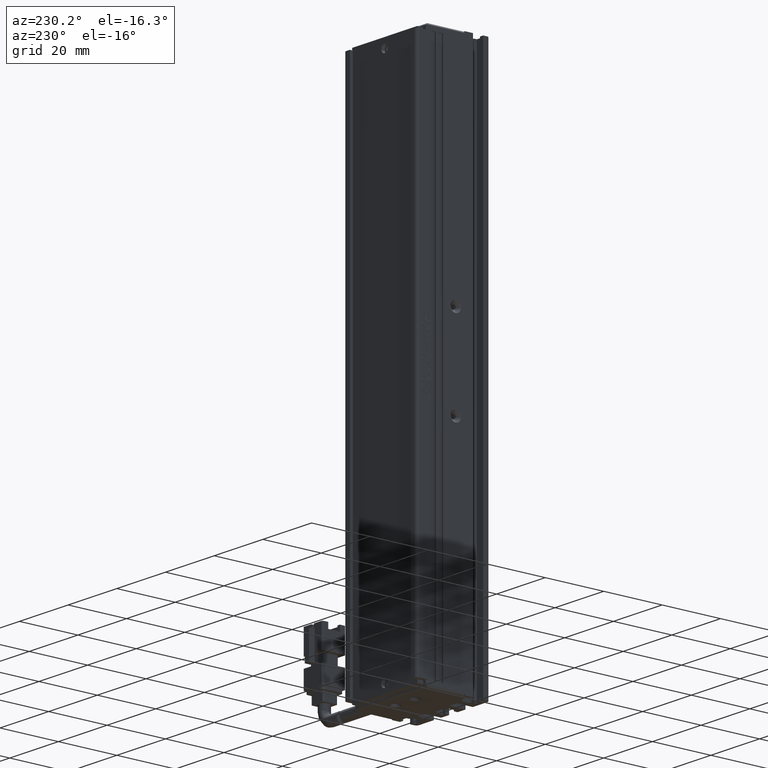
[diagram: clean part render]
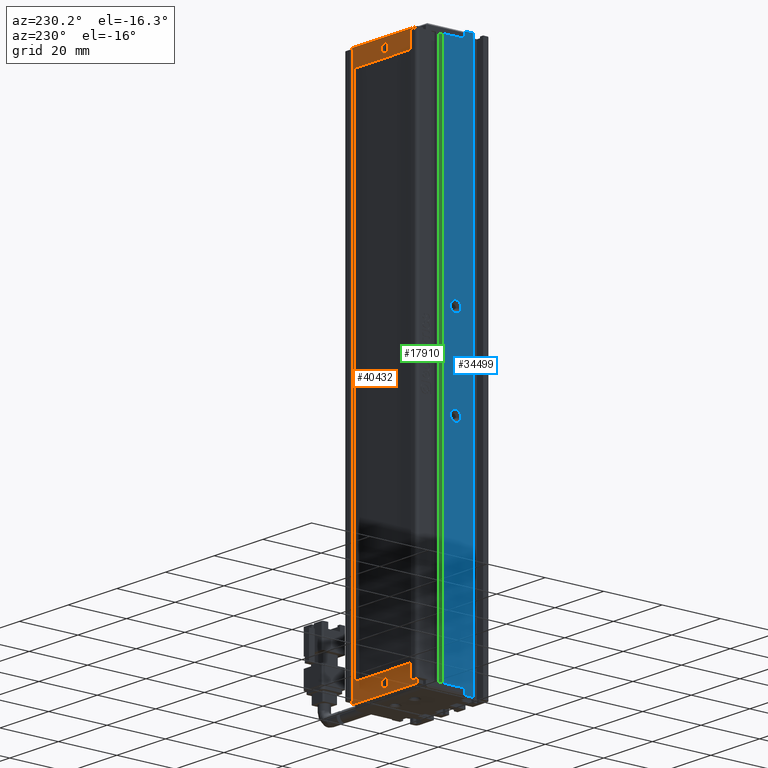
[diagram: same view with three faces highlighted in distinct colors, each labeled with its STEP entity id]
A machine part, auxiliary view with three faces highlighted in distinct colors.
Their STEP definitions:

[orange] entity #40432 — the highlighted planar face has unit normal (-0, 1, 0).
#177 = CARTESIAN_POINT ( 'NONE',  ( 27.52537974683541600, 34.19594479660386800, -24.99999999999999300 ) ) ;
#287 = VERTEX_POINT ( 'NONE', #37459 ) ;
#320 = EDGE_CURVE ( 'NONE', #11085, #40659, #8296, .T. ) ;
#1015 = CARTESIAN_POINT ( 'NONE',  ( 53.32537974683541600, 34.19594479660386800, -30.85000000000000100 ) ) ;
#1050 = VERTEX_POINT ( 'NONE', #9804 ) ;
#1615 = LINE ( 'NONE', #31131, #27227 ) ;
#1633 = EDGE_CURVE ( 'NONE', #5943, #41931, #39668, .T. ) ;
#2479 = CARTESIAN_POINT ( 'NONE',  ( 40.92537974683538900, 34.19594479660386800, -201.9999999999999700 ) ) ;
#2521 = FACE_BOUND ( 'NONE', #37481, .T. ) ;
#2889 = CARTESIAN_POINT ( 'NONE',  ( 27.52537974683542300, 34.19594479660386800, -24.99999999999999300 ) ) ;
#3035 = LINE ( 'NONE', #7612, #20813 ) ;
#4808 = VECTOR ( 'NONE', #32948, 1000.000000000000000 ) ;
#5230 = ORIENTED_EDGE ( 'NONE', *, *, #20633, .F. ) ;
#5832 = DIRECTION ( 'NONE',  ( 0.0000000000000000000, 0.0000000000000000000, 1.000000000000000000 ) ) ;
#5943 = VERTEX_POINT ( 'NONE', #11902 ) ;
#6001 = EDGE_LOOP ( 'NONE', ( #6500, #37693, #34278, #5230 ) ) ;
#6500 = ORIENTED_EDGE ( 'NONE', *, *, #10972, .F. ) ;
#6652 = EDGE_CURVE ( 'NONE', #40659, #11085, #13677, .T. ) ;
#6685 = CARTESIAN_POINT ( 'NONE',  ( 27.52537974683542300, 34.19594479660386800, -24.99999999999999300 ) ) ;
#6967 = ORIENTED_EDGE ( 'NONE', *, *, #18337, .T. ) ;
#7612 = CARTESIAN_POINT ( 'NONE',  ( 27.52537974683539100, 34.19594479660386800, -205.0000000000000000 ) ) ;
#8296 = CIRCLE ( 'NONE', #15191, 1.399999999999998600 ) ;
#8950 = VERTEX_POINT ( 'NONE', #21408 ) ;
#9742 = AXIS2_PLACEMENT_3D ( 'NONE', #31782, #31740, #31733 ) ;
#9804 = CARTESIAN_POINT ( 'NONE',  ( 28.52537974683541600, 34.19594479660386800, -198.8500000000000200 ) ) ;
#10043 = DIRECTION ( 'NONE',  ( 1.000000000000000000, 0.0000000000000000000, -5.551115123125781500E-017 ) ) ;
#10757 = CARTESIAN_POINT ( 'NONE',  ( 54.32537974683541600, 34.19594479660386800, -24.99999999999999300 ) ) ;
#10972 = EDGE_CURVE ( 'NONE', #8950, #1050, #1615, .T. ) ;
#11085 = VERTEX_POINT ( 'NONE', #20263 ) ;
#11239 = CARTESIAN_POINT ( 'NONE',  ( 40.92537974683541800, 34.19594479660386800, -29.39999999999999500 ) ) ;
#11344 = FACE_BOUND ( 'NONE', #6001, .T. ) ;
#11456 = ORIENTED_EDGE ( 'NONE', *, *, #35056, .T. ) ;
#11605 = AXIS2_PLACEMENT_3D ( 'NONE', #14488, #38000, #17889 ) ;
#11902 = CARTESIAN_POINT ( 'NONE',  ( 54.32537974683541600, 34.19594479660386800, -24.99999999999999300 ) ) ;
#12134 = VERTEX_POINT ( 'NONE', #18961 ) ;
#12526 = CIRCLE ( 'NONE', #11605, 1.400000000000012300 ) ;
#12871 = CARTESIAN_POINT ( 'NONE',  ( 53.32537974683541600, 34.19594479660386800, -30.85000000000000100 ) ) ;
#13589 = ORIENTED_EDGE ( 'NONE', *, *, #15717, .T. ) ;
#13677 = CIRCLE ( 'NONE', #9742, 1.399999999999998600 ) ;
#14390 = DIRECTION ( 'NONE',  ( 0.0000000000000000000, 0.0000000000000000000, 1.000000000000000000 ) ) ;
#14453 = DIRECTION ( 'NONE',  ( 1.000000000000000000, 0.0000000000000000000, 0.0000000000000000000 ) ) ;
#14488 = CARTESIAN_POINT ( 'NONE',  ( 40.92537974683538900, 34.19594479660386800, -201.9999999999999700 ) ) ;
#14996 = ORIENTED_EDGE ( 'NONE', *, *, #1633, .T. ) ;
#15191 = AXIS2_PLACEMENT_3D ( 'NONE', #17060, #40496, #14390 ) ;
#15663 = ORIENTED_EDGE ( 'NONE', *, *, #35345, .T. ) ;
#15717 = EDGE_CURVE ( 'NONE', #25634, #5943, #36125, .T. ) ;
#17060 = CARTESIAN_POINT ( 'NONE',  ( 40.92537974683541800, 34.19594479660386800, -27.99999999999999600 ) ) ;
#17661 = VECTOR ( 'NONE', #36970, 1000.000000000000000 ) ;
#17889 = DIRECTION ( 'NONE',  ( 0.0000000000000000000, 0.0000000000000000000, 1.000000000000000000 ) ) ;
#18337 = EDGE_CURVE ( 'NONE', #41931, #12134, #3035, .T. ) ;
#18961 = CARTESIAN_POINT ( 'NONE',  ( 27.52537974683539100, 34.19594479660386800, -205.0000000000000000 ) ) ;
#19744 = DIRECTION ( 'NONE',  ( -0.0000000000000000000, 1.000000000000000000, 0.0000000000000000000 ) ) ;
#20042 = CARTESIAN_POINT ( 'NONE',  ( 28.52537974683541600, 34.19594479660386800, -30.85000000000000100 ) ) ;
#20263 = CARTESIAN_POINT ( 'NONE',  ( 40.92537974683541800, 34.19594479660386800, -26.59999999999999800 ) ) ;
#20372 = LINE ( 'NONE', #2889, #38246 ) ;
#20633 = EDGE_CURVE ( 'NONE', #1050, #40521, #31297, .T. ) ;
#20813 = VECTOR ( 'NONE', #34392, 1000.000000000000000 ) ;
#21113 = ORIENTED_EDGE ( 'NONE', *, *, #33515, .T. ) ;
#21200 = EDGE_LOOP ( 'NONE', ( #6967, #11456, #13589, #14996 ) ) ;
#21359 = VECTOR ( 'NONE', #22223, 1000.000000000000000 ) ;
#21408 = CARTESIAN_POINT ( 'NONE',  ( 53.32537974683541600, 34.19594479660386800, -198.8500000000000200 ) ) ;
#22223 = DIRECTION ( 'NONE',  ( 0.0000000000000000000, 0.0000000000000000000, 1.000000000000000000 ) ) ;
#22656 = VERTEX_POINT ( 'NONE', #1015 ) ;
#22770 = VERTEX_POINT ( 'NONE', #42221 ) ;
#22967 = PLANE ( 'NONE',  #25959 ) ;
#24442 = CARTESIAN_POINT ( 'NONE',  ( 28.52537974683541600, 34.19594479660386800, -30.85000000000000100 ) ) ;
#25634 = VERTEX_POINT ( 'NONE', #177 ) ;
#25745 = LINE ( 'NONE', #12871, #4808 ) ;
#25850 = DIRECTION ( 'NONE',  ( -0.0000000000000000000, -1.000000000000000000, -0.0000000000000000000 ) ) ;
#25889 = EDGE_LOOP ( 'NONE', ( #21113, #15663 ) ) ;
#25959 = AXIS2_PLACEMENT_3D ( 'NONE', #39837, #19744, #43184 ) ;
#26150 = VECTOR ( 'NONE', #10043, 1000.000000000000000 ) ;
#27227 = VECTOR ( 'NONE', #30041, 1000.000000000000000 ) ;
#28670 = CIRCLE ( 'NONE', #41479, 1.400000000000012300 ) ;
#29186 = FACE_BOUND ( 'NONE', #25889, .T. ) ;
#29742 = CARTESIAN_POINT ( 'NONE',  ( 54.32537974683539500, 34.19594479660386800, -205.0000000000000000 ) ) ;
#30041 = DIRECTION ( 'NONE',  ( -1.000000000000000000, 0.0000000000000000000, 0.0000000000000000000 ) ) ;
#30977 = VECTOR ( 'NONE', #14453, 1000.000000000000000 ) ;
#31131 = CARTESIAN_POINT ( 'NONE',  ( 53.32537974683541600, 34.19594479660386800, -198.8500000000000200 ) ) ;
#31297 = LINE ( 'NONE', #42256, #21359 ) ;
#31733 = DIRECTION ( 'NONE',  ( 0.0000000000000000000, 0.0000000000000000000, 1.000000000000000000 ) ) ;
#31740 = DIRECTION ( 'NONE',  ( -0.0000000000000000000, -1.000000000000000000, -0.0000000000000000000 ) ) ;
#31782 = CARTESIAN_POINT ( 'NONE',  ( 40.92537974683541800, 34.19594479660386800, -27.99999999999999600 ) ) ;
#32311 = ORIENTED_EDGE ( 'NONE', *, *, #6652, .T. ) ;
#32699 = DIRECTION ( 'NONE',  ( 1.779758311459931700E-016, -0.0000000000000000000, 1.000000000000000000 ) ) ;
#32948 = DIRECTION ( 'NONE',  ( 0.0000000000000000000, 0.0000000000000000000, -1.000000000000000000 ) ) ;
#33515 = EDGE_CURVE ( 'NONE', #22770, #287, #28670, .T. ) ;
#34278 = ORIENTED_EDGE ( 'NONE', *, *, #42161, .F. ) ;
#34392 = DIRECTION ( 'NONE',  ( -1.000000000000000000, -0.0000000000000000000, 5.551115123125781500E-017 ) ) ;
#35056 = EDGE_CURVE ( 'NONE', #12134, #25634, #20372, .T. ) ;
#35345 = EDGE_CURVE ( 'NONE', #287, #22770, #12526, .T. ) ;
#36125 = LINE ( 'NONE', #6685, #26150 ) ;
#36970 = DIRECTION ( 'NONE',  ( -1.711593829630449500E-016, -0.0000000000000000000, -1.000000000000000000 ) ) ;
#37450 = EDGE_CURVE ( 'NONE', #22656, #8950, #25745, .T. ) ;
#37459 = CARTESIAN_POINT ( 'NONE',  ( 40.92537974683538900, 34.19594479660386800, -203.4000000000000100 ) ) ;
#37481 = EDGE_LOOP ( 'NONE', ( #43169, #32311 ) ) ;
#37693 = ORIENTED_EDGE ( 'NONE', *, *, #37450, .F. ) ;
#38000 = DIRECTION ( 'NONE',  ( -0.0000000000000000000, -1.000000000000000000, -0.0000000000000000000 ) ) ;
#38137 = FACE_OUTER_BOUND ( 'NONE', #21200, .T. ) ;
#38246 = VECTOR ( 'NONE', #32699, 1000.000000000000000 ) ;
#39668 = LINE ( 'NONE', #10757, #17661 ) ;
#39837 = CARTESIAN_POINT ( 'NONE',  ( 54.32537974683541600, 34.19594479660386800, -24.99999999999999300 ) ) ;
#40432 = ADVANCED_FACE ( 'NONE', ( #38137, #2521, #29186, #11344 ), #22967, .T. ) ;
#40496 = DIRECTION ( 'NONE',  ( -0.0000000000000000000, -1.000000000000000000, -0.0000000000000000000 ) ) ;
#40521 = VERTEX_POINT ( 'NONE', #20042 ) ;
#40659 = VERTEX_POINT ( 'NONE', #11239 ) ;
#40920 = LINE ( 'NONE', #24442, #30977 ) ;
#41479 = AXIS2_PLACEMENT_3D ( 'NONE', #2479, #25850, #5832 ) ;
#41931 = VERTEX_POINT ( 'NONE', #29742 ) ;
#42161 = EDGE_CURVE ( 'NONE', #40521, #22656, #40920, .T. ) ;
#42221 = CARTESIAN_POINT ( 'NONE',  ( 40.92537974683538900, 34.19594479660386800, -200.5999999999999700 ) ) ;
#42256 = CARTESIAN_POINT ( 'NONE',  ( 28.52537974683541600, 34.19594479660386800, -198.8500000000000200 ) ) ;
#43169 = ORIENTED_EDGE ( 'NONE', *, *, #320, .T. ) ;
#43184 = DIRECTION ( 'NONE',  ( 5.551115123125781500E-017, 0.0000000000000000000, 1.000000000000000000 ) ) ;

[blue] entity #34499 — the highlighted planar face has unit normal (-1, 0, 0).
#20 = CIRCLE ( 'NONE', #19737, 1.799999999989268400 ) ;
#692 = CARTESIAN_POINT ( 'NONE',  ( 25.92537974683541800, 26.69594479660386800, -25.99999999999999600 ) ) ;
#1212 = CIRCLE ( 'NONE', #12067, 1.799999999989268400 ) ;
#1223 = CARTESIAN_POINT ( 'NONE',  ( 25.92537974679222400, 22.39594479660386700, -131.8000000000734200 ) ) ;
#1296 = EDGE_CURVE ( 'NONE', #30055, #11473, #20, .T. ) ;
#1349 = LINE ( 'NONE', #7393, #19088 ) ;
#1967 = EDGE_CURVE ( 'NONE', #15996, #42359, #28734, .T. ) ;
#2378 = FACE_OUTER_BOUND ( 'NONE', #29711, .T. ) ;
#3327 = CARTESIAN_POINT ( 'NONE',  ( 25.92537974683542100, 19.19594479660386500, -24.00000000000000700 ) ) ;
#3585 = EDGE_CURVE ( 'NONE', #11473, #30055, #1212, .T. ) ;
#5073 = ORIENTED_EDGE ( 'NONE', *, *, #1296, .T. ) ;
#5134 = DIRECTION ( 'NONE',  ( -1.000000000000000000, 0.0000000000000000000, 0.0000000000000000000 ) ) ;
#5546 = LINE ( 'NONE', #36098, #40085 ) ;
#6687 = VERTEX_POINT ( 'NONE', #30780 ) ;
#7393 = CARTESIAN_POINT ( 'NONE',  ( 25.92537974683541800, 16.49594479660387200, -24.00000000000000700 ) ) ;
#8139 = ORIENTED_EDGE ( 'NONE', *, *, #8391, .T. ) ;
#8391 = EDGE_CURVE ( 'NONE', #10958, #15996, #36358, .T. ) ;
#9700 = EDGE_LOOP ( 'NONE', ( #5073, #28961 ) ) ;
#10119 = AXIS2_PLACEMENT_3D ( 'NONE', #17845, #41243, #21223 ) ;
#10323 = DIRECTION ( 'NONE',  ( -0.0000000000000000000, -0.0000000000000000000, -1.000000000000000000 ) ) ;
#10510 = VERTEX_POINT ( 'NONE', #14149 ) ;
#10587 = CARTESIAN_POINT ( 'NONE',  ( 25.92537974683542100, 35.69594479660387500, -26.00000000000001100 ) ) ;
#10958 = VERTEX_POINT ( 'NONE', #30975 ) ;
#11136 = EDGE_CURVE ( 'NONE', #20077, #30165, #30949, .T. ) ;
#11208 = CIRCLE ( 'NONE', #29437, 1.800000000073409500 ) ;
#11473 = VERTEX_POINT ( 'NONE', #28134 ) ;
#12067 = AXIS2_PLACEMENT_3D ( 'NONE', #32979, #32561, #32409 ) ;
#12598 = LINE ( 'NONE', #36696, #33573 ) ;
#12651 = CARTESIAN_POINT ( 'NONE',  ( 25.92537974683541800, 26.69594479660386800, -24.00000000000000700 ) ) ;
#12791 = EDGE_LOOP ( 'NONE', ( #33360, #34301 ) ) ;
#13085 = VECTOR ( 'NONE', #31391, 1000.000000000000000 ) ;
#13298 = CARTESIAN_POINT ( 'NONE',  ( 25.92537974683541800, 7.083797468354437600, -24.00000000000000700 ) ) ;
#13974 = CARTESIAN_POINT ( 'NONE',  ( 25.92537974679222400, 22.39594479660386700, -128.1999999999266000 ) ) ;
#14149 = CARTESIAN_POINT ( 'NONE',  ( 25.92537974683541800, 19.19594479660386500, -204.0000000000000300 ) ) ;
#14893 = PLANE ( 'NONE',  #16010 ) ;
#15996 = VERTEX_POINT ( 'NONE', #692 ) ;
#16010 = AXIS2_PLACEMENT_3D ( 'NONE', #25173, #5134, #28523 ) ;
#17501 = DIRECTION ( 'NONE',  ( 0.0000000000000000000, 1.000000000000000000, 0.0000000000000000000 ) ) ;
#17845 = CARTESIAN_POINT ( 'NONE',  ( 25.92537974679222400, 22.39594479660386700, -130.0000000000000000 ) ) ;
#18788 = ORIENTED_EDGE ( 'NONE', *, *, #29310, .T. ) ;
#19083 = DIRECTION ( 'NONE',  ( 1.000000000000000000, -0.0000000000000000000, -0.0000000000000000000 ) ) ;
#19088 = VECTOR ( 'NONE', #30767, 1000.000000000000000 ) ;
#19196 = LINE ( 'NONE', #3327, #37043 ) ;
#19737 = AXIS2_PLACEMENT_3D ( 'NONE', #23992, #24135, #40832 ) ;
#19809 = VECTOR ( 'NONE', #10323, 1000.000000000000000 ) ;
#20077 = VERTEX_POINT ( 'NONE', #28383 ) ;
#20116 = FACE_BOUND ( 'NONE', #12791, .T. ) ;
#20798 = CARTESIAN_POINT ( 'NONE',  ( 25.92537974683541800, 16.49594479660387200, -206.0000000000000300 ) ) ;
#21223 = DIRECTION ( 'NONE',  ( 0.0000000000000000000, 0.0000000000000000000, 1.000000000000000000 ) ) ;
#21492 = ORIENTED_EDGE ( 'NONE', *, *, #23073, .T. ) ;
#22056 = LINE ( 'NONE', #13298, #30967 ) ;
#22096 = ORIENTED_EDGE ( 'NONE', *, *, #37530, .T. ) ;
#22627 = CIRCLE ( 'NONE', #10119, 1.800000000073409500 ) ;
#22804 = EDGE_CURVE ( 'NONE', #35941, #33181, #11208, .T. ) ;
#23073 = EDGE_CURVE ( 'NONE', #30165, #28827, #1349, .T. ) ;
#23341 = DIRECTION ( 'NONE',  ( -0.0000000000000000000, -1.000000000000000000, 0.0000000000000000000 ) ) ;
#23775 = EDGE_CURVE ( 'NONE', #33181, #35941, #22627, .T. ) ;
#23992 = CARTESIAN_POINT ( 'NONE',  ( 25.92537974684906700, 22.39594479660386700, -100.0000000000000000 ) ) ;
#24135 = DIRECTION ( 'NONE',  ( 1.000000000000000000, -0.0000000000000000000, -0.0000000000000000000 ) ) ;
#25173 = CARTESIAN_POINT ( 'NONE',  ( 25.92537974683541800, 7.083797468354437600, -24.00000000000000700 ) ) ;
#25599 = EDGE_CURVE ( 'NONE', #42359, #10510, #12598, .T. ) ;
#26664 = CARTESIAN_POINT ( 'NONE',  ( 25.92537974684906700, 22.39594479660386700, -98.20000000001073200 ) ) ;
#26747 = EDGE_CURVE ( 'NONE', #10510, #20077, #19196, .T. ) ;
#28134 = CARTESIAN_POINT ( 'NONE',  ( 25.92537974684906700, 22.39594479660386700, -101.7999999999892700 ) ) ;
#28383 = CARTESIAN_POINT ( 'NONE',  ( 25.92537974683541800, 19.19594479660386500, -206.0000000000000300 ) ) ;
#28523 = DIRECTION ( 'NONE',  ( 0.0000000000000000000, 0.0000000000000000000, 1.000000000000000000 ) ) ;
#28734 = LINE ( 'NONE', #12651, #19809 ) ;
#28827 = VERTEX_POINT ( 'NONE', #35909 ) ;
#28961 = ORIENTED_EDGE ( 'NONE', *, *, #3585, .T. ) ;
#29310 = EDGE_CURVE ( 'NONE', #6687, #10958, #5546, .T. ) ;
#29437 = AXIS2_PLACEMENT_3D ( 'NONE', #39158, #19083, #42510 ) ;
#29711 = EDGE_LOOP ( 'NONE', ( #22096, #18788, #8139, #30499, #33755, #41471, #40734, #21492 ) ) ;
#30055 = VERTEX_POINT ( 'NONE', #26664 ) ;
#30165 = VERTEX_POINT ( 'NONE', #20798 ) ;
#30499 = ORIENTED_EDGE ( 'NONE', *, *, #1967, .T. ) ;
#30767 = DIRECTION ( 'NONE',  ( 0.0000000000000000000, 0.0000000000000000000, 1.000000000000000000 ) ) ;
#30780 = CARTESIAN_POINT ( 'NONE',  ( 25.92537974683541800, 19.19594479660386500, -23.99999999999999300 ) ) ;
#30949 = LINE ( 'NONE', #32008, #13085 ) ;
#30967 = VECTOR ( 'NONE', #40121, 1000.000000000000000 ) ;
#30975 = CARTESIAN_POINT ( 'NONE',  ( 25.92537974683541800, 19.19594479660386500, -25.99999999999999600 ) ) ;
#31391 = DIRECTION ( 'NONE',  ( -0.0000000000000000000, -1.000000000000000000, 0.0000000000000000000 ) ) ;
#32008 = CARTESIAN_POINT ( 'NONE',  ( 25.92537974683541800, 7.083797468354437600, -206.0000000000000300 ) ) ;
#32050 = CARTESIAN_POINT ( 'NONE',  ( 25.92537974683541800, 26.69594479660386800, -204.0000000000000300 ) ) ;
#32409 = DIRECTION ( 'NONE',  ( 0.0000000000000000000, 0.0000000000000000000, 1.000000000000000000 ) ) ;
#32561 = DIRECTION ( 'NONE',  ( 1.000000000000000000, -0.0000000000000000000, -0.0000000000000000000 ) ) ;
#32979 = CARTESIAN_POINT ( 'NONE',  ( 25.92537974684906700, 22.39594479660386700, -100.0000000000000000 ) ) ;
#33181 = VERTEX_POINT ( 'NONE', #13974 ) ;
#33360 = ORIENTED_EDGE ( 'NONE', *, *, #23775, .T. ) ;
#33573 = VECTOR ( 'NONE', #23341, 1000.000000000000000 ) ;
#33755 = ORIENTED_EDGE ( 'NONE', *, *, #25599, .T. ) ;
#34301 = ORIENTED_EDGE ( 'NONE', *, *, #22804, .T. ) ;
#34499 = ADVANCED_FACE ( 'NONE', ( #2378, #37996, #20116 ), #14893, .T. ) ;
#35336 = VECTOR ( 'NONE', #17501, 1000.000000000000000 ) ;
#35909 = CARTESIAN_POINT ( 'NONE',  ( 25.92537974683541800, 16.49594479660387200, -23.99999999999999300 ) ) ;
#35941 = VERTEX_POINT ( 'NONE', #1223 ) ;
#36098 = CARTESIAN_POINT ( 'NONE',  ( 25.92537974683541800, 19.19594479660386500, -24.00000000000000700 ) ) ;
#36358 = LINE ( 'NONE', #10587, #35336 ) ;
#36696 = CARTESIAN_POINT ( 'NONE',  ( 25.92537974683541800, 7.083797468354437600, -204.0000000000000300 ) ) ;
#37043 = VECTOR ( 'NONE', #43228, 1000.000000000000000 ) ;
#37530 = EDGE_CURVE ( 'NONE', #28827, #6687, #22056, .T. ) ;
#37996 = FACE_BOUND ( 'NONE', #9700, .T. ) ;
#39158 = CARTESIAN_POINT ( 'NONE',  ( 25.92537974679222400, 22.39594479660386700, -130.0000000000000000 ) ) ;
#39468 = DIRECTION ( 'NONE',  ( 0.0000000000000000000, -0.0000000000000000000, -1.000000000000000000 ) ) ;
#40085 = VECTOR ( 'NONE', #39468, 1000.000000000000000 ) ;
#40121 = DIRECTION ( 'NONE',  ( 0.0000000000000000000, 1.000000000000000000, -0.0000000000000000000 ) ) ;
#40734 = ORIENTED_EDGE ( 'NONE', *, *, #11136, .T. ) ;
#40832 = DIRECTION ( 'NONE',  ( 0.0000000000000000000, 0.0000000000000000000, 1.000000000000000000 ) ) ;
#41243 = DIRECTION ( 'NONE',  ( 1.000000000000000000, -0.0000000000000000000, -0.0000000000000000000 ) ) ;
#41471 = ORIENTED_EDGE ( 'NONE', *, *, #26747, .T. ) ;
#42359 = VERTEX_POINT ( 'NONE', #32050 ) ;
#42510 = DIRECTION ( 'NONE',  ( 0.0000000000000000000, 0.0000000000000000000, 1.000000000000000000 ) ) ;
#43228 = DIRECTION ( 'NONE',  ( 0.0000000000000000000, -0.0000000000000000000, -1.000000000000000000 ) ) ;

[green] entity #17910 — the highlighted planar face has unit normal (1, 0, -0).
#235 = LINE ( 'NONE', #39820, #8053 ) ;
#558 = FACE_OUTER_BOUND ( 'NONE', #28701, .T. ) ;
#1435 = VERTEX_POINT ( 'NONE', #40027 ) ;
#2204 = DIRECTION ( 'NONE',  ( 0.0000000000000000000, -0.0000000000000000000, 1.000000000000000000 ) ) ;
#2746 = VERTEX_POINT ( 'NONE', #26971 ) ;
#4653 = EDGE_CURVE ( 'NONE', #34045, #1435, #26618, .T. ) ;
#6877 = VERTEX_POINT ( 'NONE', #27846 ) ;
#7944 = VECTOR ( 'NONE', #37116, 1000.000000000000000 ) ;
#8053 = VECTOR ( 'NONE', #43166, 1000.000000000000000 ) ;
#8390 = PLANE ( 'NONE',  #10266 ) ;
#10266 = AXIS2_PLACEMENT_3D ( 'NONE', #18565, #42010, #21970 ) ;
#13533 = ORIENTED_EDGE ( 'NONE', *, *, #23532, .T. ) ;
#13919 = VECTOR ( 'NONE', #2204, 1000.000000000000000 ) ;
#14537 = ORIENTED_EDGE ( 'NONE', *, *, #22268, .F. ) ;
#14628 = ORIENTED_EDGE ( 'NONE', *, *, #17199, .F. ) ;
#16654 = VECTOR ( 'NONE', #37635, 1000.000000000000000 ) ;
#16798 = LINE ( 'NONE', #20399, #7944 ) ;
#17199 = EDGE_CURVE ( 'NONE', #6877, #2746, #16798, .T. ) ;
#17910 = ADVANCED_FACE ( 'NONE', ( #558 ), #8390, .F. ) ;
#17940 = ORIENTED_EDGE ( 'NONE', *, *, #4653, .F. ) ;
#18565 = CARTESIAN_POINT ( 'NONE',  ( 26.42537974683542100, 7.083797468354437600, -24.00000000000000700 ) ) ;
#18829 = CARTESIAN_POINT ( 'NONE',  ( 26.42537974683542100, 28.19594479660387200, -24.00000000000000700 ) ) ;
#20399 = CARTESIAN_POINT ( 'NONE',  ( 26.42537974683542100, 7.083797468354437600, -26.00000000000001100 ) ) ;
#21970 = DIRECTION ( 'NONE',  ( -0.0000000000000000000, 0.0000000000000000000, -1.000000000000000000 ) ) ;
#22268 = EDGE_CURVE ( 'NONE', #1435, #6877, #31765, .T. ) ;
#23532 = EDGE_CURVE ( 'NONE', #34045, #2746, #235, .T. ) ;
#26618 = LINE ( 'NONE', #38102, #16654 ) ;
#26971 = CARTESIAN_POINT ( 'NONE',  ( 26.42537974683541800, 26.69594479660386800, -25.99999999999999600 ) ) ;
#27846 = CARTESIAN_POINT ( 'NONE',  ( 26.42537974683541800, 28.19594479660387500, -25.99999999999999600 ) ) ;
#28701 = EDGE_LOOP ( 'NONE', ( #14628, #14537, #17940, #13533 ) ) ;
#31765 = LINE ( 'NONE', #18829, #13919 ) ;
#34045 = VERTEX_POINT ( 'NONE', #35489 ) ;
#35489 = CARTESIAN_POINT ( 'NONE',  ( 26.42537974683541800, 26.69594479660386800, -204.0000000000000300 ) ) ;
#37116 = DIRECTION ( 'NONE',  ( -0.0000000000000000000, -1.000000000000000000, -0.0000000000000000000 ) ) ;
#37635 = DIRECTION ( 'NONE',  ( 0.0000000000000000000, 1.000000000000000000, 0.0000000000000000000 ) ) ;
#38102 = CARTESIAN_POINT ( 'NONE',  ( 26.42537974683542100, 7.083797468354437600, -204.0000000000000300 ) ) ;
#39820 = CARTESIAN_POINT ( 'NONE',  ( 26.42537974683542100, 26.69594479660386800, -24.00000000000000700 ) ) ;
#40027 = CARTESIAN_POINT ( 'NONE',  ( 26.42537974683541800, 28.19594479660387500, -204.0000000000000300 ) ) ;
#42010 = DIRECTION ( 'NONE',  ( 1.000000000000000000, 0.0000000000000000000, -0.0000000000000000000 ) ) ;
#43166 = DIRECTION ( 'NONE',  ( -0.0000000000000000000, 0.0000000000000000000, 1.000000000000000000 ) ) ;